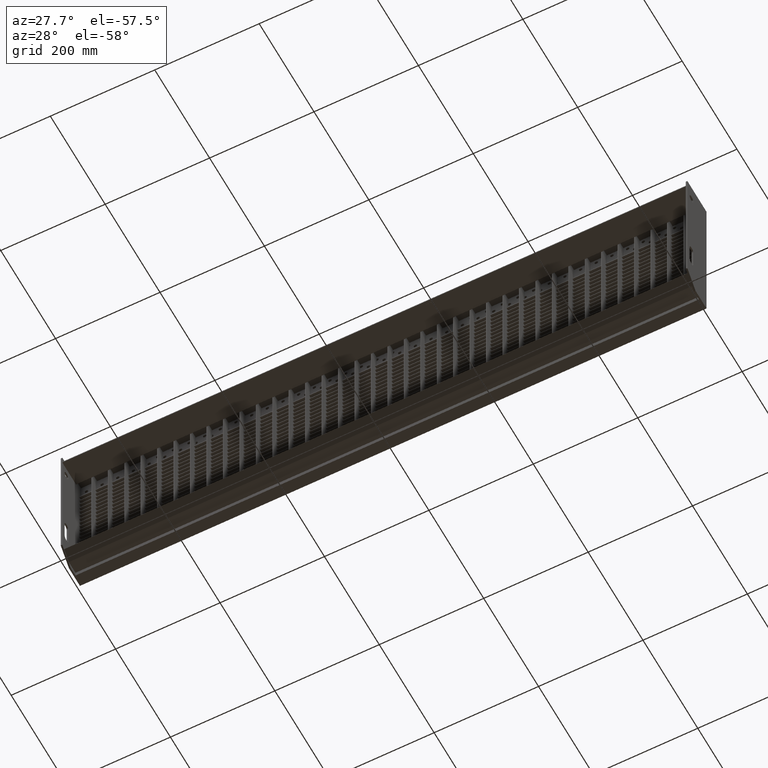
[diagram: clean part render]
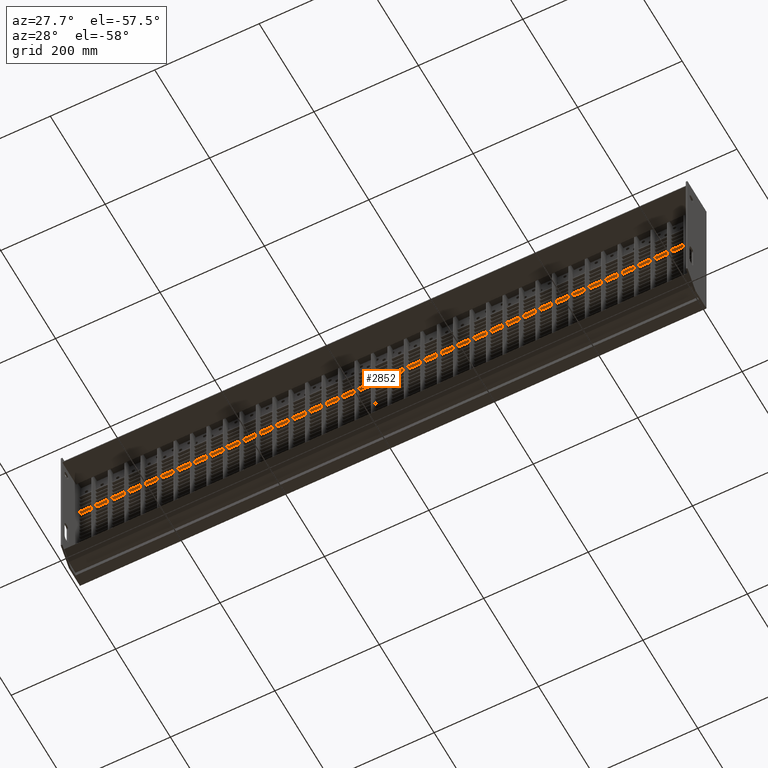
[diagram: same view with one face highlighted and labeled with its STEP entity id]
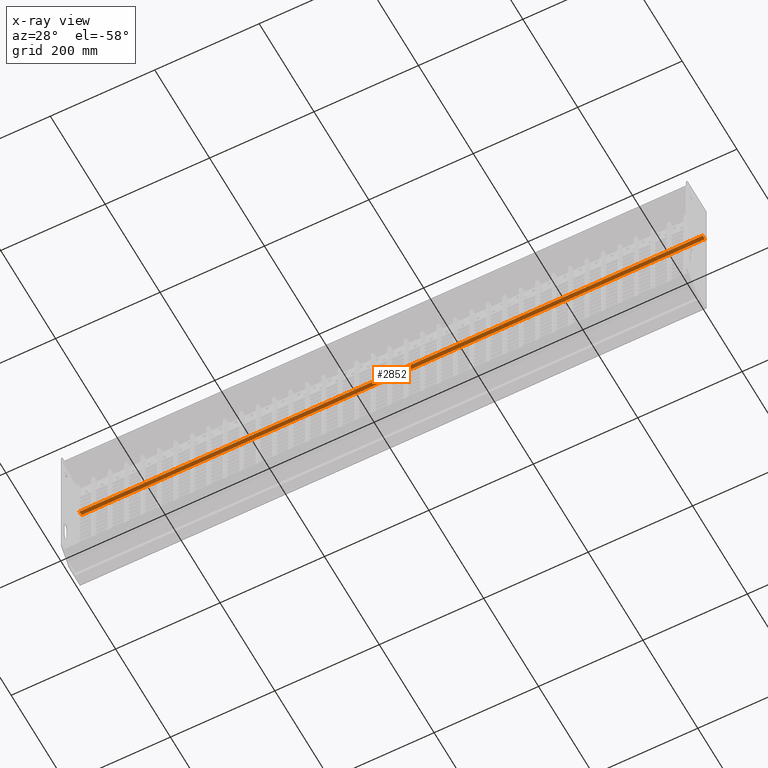
[diagram: x-ray of the same camera — body ghosted, the highlighted face saturated]
A machine part, auxiliary view. The second image highlights one B-rep face of the part: STEP entity #2852.
The next image is the same camera in x-ray: the body ghosted, the highlighted face saturated — about 0% of this face is hidden behind the body in this view.
In plain terms, the highlighted planar face has unit normal (-0, 0, 1).
Its self-contained STEP definition (entity closure, byte-faithful):
#882 = CARTESIAN_POINT ( 'NONE',  ( -597.0000000000000000, 70.00000000000000000, -84.24999999999995700 ) ) ;
#1303 = CARTESIAN_POINT ( 'NONE',  ( -597.0000000000000000, 62.00000000000000700, -84.24999999999995700 ) ) ;
#1965 = ORIENTED_EDGE ( 'NONE', *, *, #30867, .F. ) ;
#2852 = ADVANCED_FACE ( 'NONE', ( #25779 ), #16907, .F. ) ;
#3426 = DIRECTION ( 'NONE',  ( -1.000000000000000000, -0.0000000000000000000, -0.0000000000000000000 ) ) ;
#4861 = LINE ( 'NONE', #17614, #5304 ) ;
#5304 = VECTOR ( 'NONE', #32933, 1000.000000000000000 ) ;
#6379 = VECTOR ( 'NONE', #28523, 1000.000000000000000 ) ;
#7858 = CARTESIAN_POINT ( 'NONE',  ( 597.0000000000000000, 62.00000000000000700, -84.24999999999995700 ) ) ;
#8408 = EDGE_CURVE ( 'NONE', #11918, #15926, #16819, .T. ) ;
#9028 = ORIENTED_EDGE ( 'NONE', *, *, #8408, .T. ) ;
#10074 = AXIS2_PLACEMENT_3D ( 'NONE', #19989, #26214, #32356 ) ;
#10292 = LINE ( 'NONE', #882, #6379 ) ;
#10664 = ORIENTED_EDGE ( 'NONE', *, *, #33893, .F. ) ;
#11918 = VERTEX_POINT ( 'NONE', #13534 ) ;
#12520 = DIRECTION ( 'NONE',  ( 0.0000000000000000000, -1.000000000000000000, 0.0000000000000000000 ) ) ;
#13500 = VERTEX_POINT ( 'NONE', #31497 ) ;
#13534 = CARTESIAN_POINT ( 'NONE',  ( 597.0000000000000000, 70.00000000000000000, -84.24999999999995700 ) ) ;
#13815 = EDGE_CURVE ( 'NONE', #15926, #22849, #4861, .T. ) ;
#15727 = CARTESIAN_POINT ( 'NONE',  ( 597.0000000000000000, 70.00000000000000000, -84.24999999999995700 ) ) ;
#15926 = VERTEX_POINT ( 'NONE', #7858 ) ;
#16819 = LINE ( 'NONE', #15727, #35024 ) ;
#16907 = PLANE ( 'NONE',  #10074 ) ;
#17614 = CARTESIAN_POINT ( 'NONE',  ( 605.1394102980498200, 62.00000000000000700, -84.24999999999995700 ) ) ;
#19989 = CARTESIAN_POINT ( 'NONE',  ( 605.1394102980498200, 70.00000000000000000, -84.24999999999995700 ) ) ;
#22051 = CARTESIAN_POINT ( 'NONE',  ( 605.1394102980498200, 70.00000000000000000, -84.24999999999995700 ) ) ;
#22849 = VERTEX_POINT ( 'NONE', #1303 ) ;
#25779 = FACE_OUTER_BOUND ( 'NONE', #27965, .T. ) ;
#26214 = DIRECTION ( 'NONE',  ( -0.0000000000000000000, 0.0000000000000000000, 1.000000000000000000 ) ) ;
#27965 = EDGE_LOOP ( 'NONE', ( #1965, #9028, #32236, #10664 ) ) ;
#28523 = DIRECTION ( 'NONE',  ( 0.0000000000000000000, -1.000000000000000000, 0.0000000000000000000 ) ) ;
#30867 = EDGE_CURVE ( 'NONE', #11918, #13500, #37364, .T. ) ;
#31497 = CARTESIAN_POINT ( 'NONE',  ( -597.0000000000000000, 70.00000000000000000, -84.24999999999995700 ) ) ;
#32236 = ORIENTED_EDGE ( 'NONE', *, *, #13815, .T. ) ;
#32356 = DIRECTION ( 'NONE',  ( 1.000000000000000000, 0.0000000000000000000, 0.0000000000000000000 ) ) ;
#32933 = DIRECTION ( 'NONE',  ( -1.000000000000000000, -0.0000000000000000000, -0.0000000000000000000 ) ) ;
#33893 = EDGE_CURVE ( 'NONE', #13500, #22849, #10292, .T. ) ;
#35024 = VECTOR ( 'NONE', #12520, 1000.000000000000000 ) ;
#37364 = LINE ( 'NONE', #22051, #39769 ) ;
#39769 = VECTOR ( 'NONE', #3426, 1000.000000000000000 ) ;